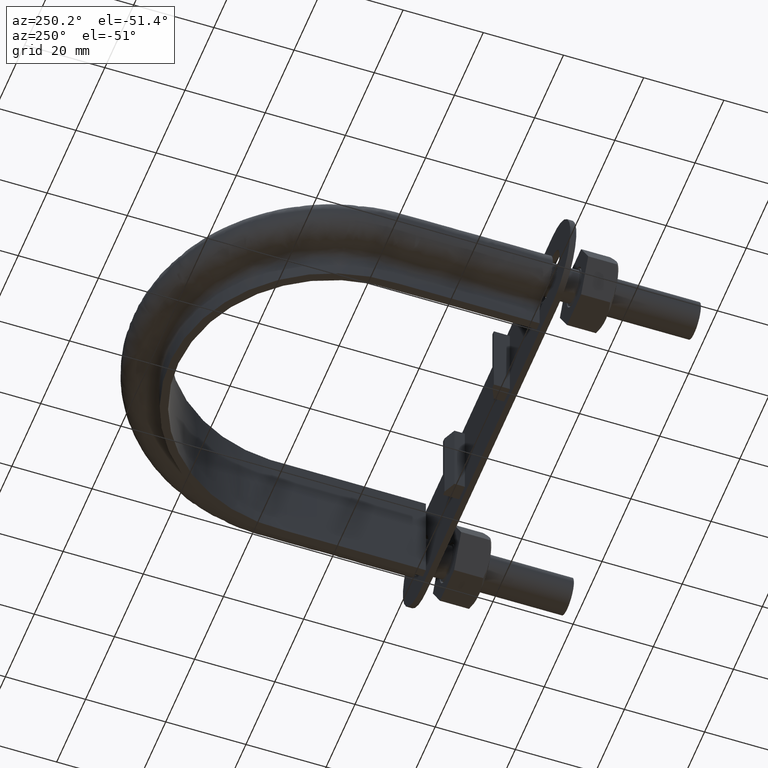
[diagram: clean part render]
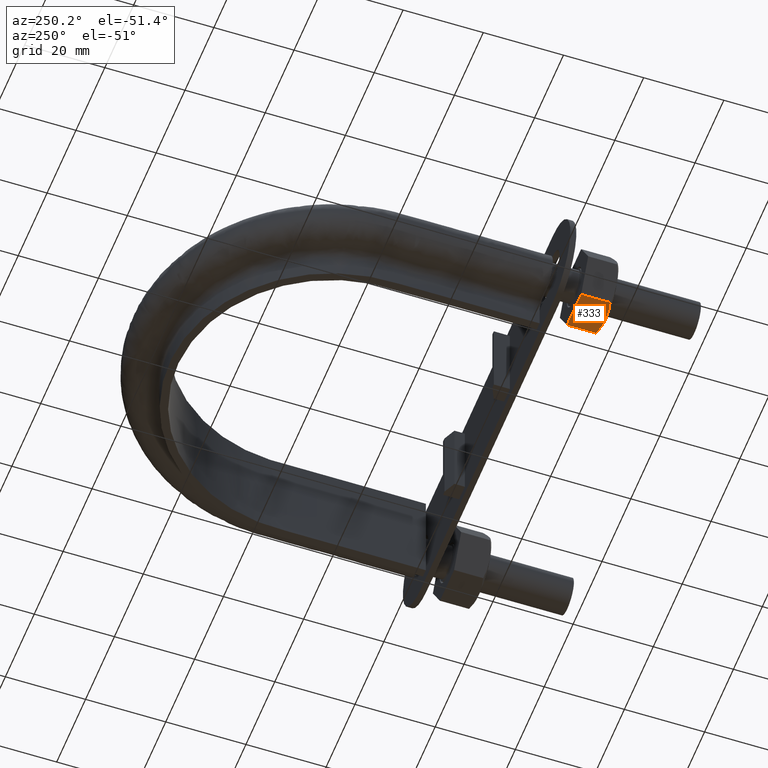
[diagram: same view with one face highlighted and labeled with its STEP entity id]
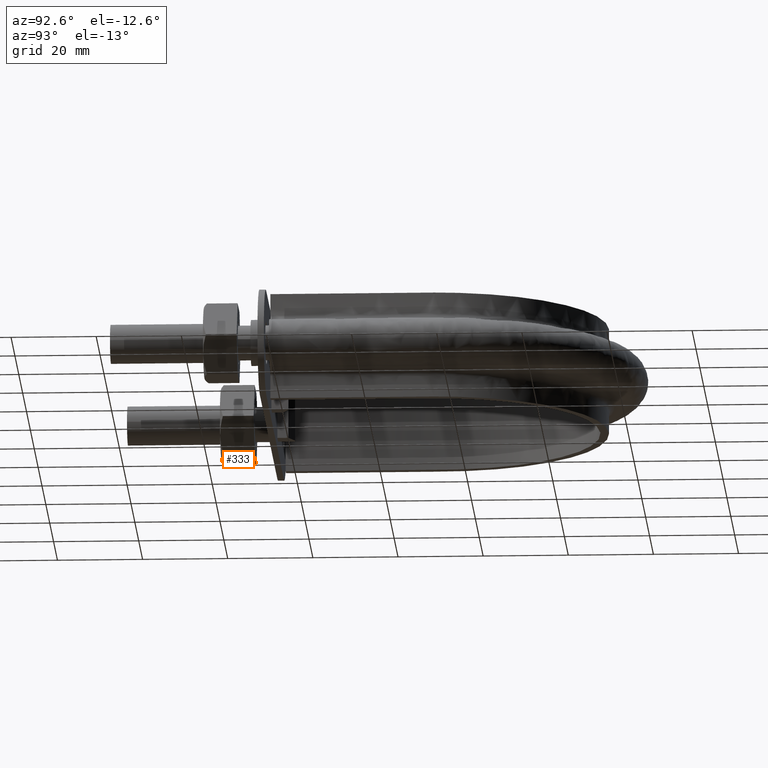
[diagram: same view with one face highlighted and labeled with its STEP entity id]
A machine part, auxiliary view. The second image highlights one B-rep face of the part: STEP entity #333.
A second angle (auxiliary view) of the same face is appended — the face is thin or edge-on in the first view.
In plain terms, the highlighted planar face has unit normal (-0, -0, 1).
Its self-contained STEP definition (entity closure, byte-faithful):
#333 = ADVANCED_FACE( '', ( #532 ), #533, .F. );
#532 = FACE_OUTER_BOUND( '', #1610, .T. );
#533 = PLANE( '', #1611 );
#1610 = EDGE_LOOP( '', ( #2178, #2179, #2180, #2181, #2182 ) );
#1611 = AXIS2_PLACEMENT_3D( '', #2183, #2184, #2185 );
#2178 = ORIENTED_EDGE( '', *, *, #2651, .F. );
#2179 = ORIENTED_EDGE( '', *, *, #2652, .F. );
#2180 = ORIENTED_EDGE( '', *, *, #2653, .F. );
#2181 = ORIENTED_EDGE( '', *, *, #2654, .F. );
#2182 = ORIENTED_EDGE( '', *, *, #2655, .F. );
#2183 = CARTESIAN_POINT( '', ( -39.0925227118927, 30.0000000000000, -8.49999999999843 ) );
#2184 = DIRECTION( '', ( -1.51593857816338E-029, -6.12303176298838E-017, 1.00000000000000 ) );
#2185 = DIRECTION( '', ( 1.00000000000000, -2.47579734491450E-013, 2.80259692864963E-045 ) );
#2651 = EDGE_CURVE( '', #2975, #2976, #2977, .T. );
#2652 = EDGE_CURVE( '', #2978, #2975, #2979, .T. );
#2653 = EDGE_CURVE( '', #2980, #2978, #2981, .T. );
#2654 = EDGE_CURVE( '', #2982, #2980, #2983, .T. );
#2655 = EDGE_CURVE( '', #2976, #2982, #2984, .F. );
#2975 = VERTEX_POINT( '', #3702 );
#2976 = VERTEX_POINT( '', #3703 );
#2977 = B_SPLINE_CURVE_WITH_KNOTS( '', 3, ( #3704, #3705, #3706, #3707, #3708, #3709 ), .UNSPECIFIED., .F., .F., ( 4, 2, 4 ), ( 9.33771209202160E-016, 0.00246745482903548, 0.00493490965807003 ), .UNSPECIFIED. );
#2978 = VERTEX_POINT( '', #3710 );
#2979 = B_SPLINE_CURVE_WITH_KNOTS( '', 3, ( #3711, #3712, #3713, #3714, #3715, #3716 ), .UNSPECIFIED., .F., .F., ( 4, 2, 4 ), ( 3.31356886906154E-015, 0.00246745482903699, 0.00493490965807067 ), .UNSPECIFIED. );
#2980 = VERTEX_POINT( '', #3717 );
#2981 = LINE( '', #3718, #3719 );
#2982 = VERTEX_POINT( '', #3720 );
#2983 = LINE( '', #3721, #3722 );
#2984 = LINE( '', #3723, #3724 );
#3702 = CARTESIAN_POINT( '', ( -44.0000000000011, 22.0000000000013, -8.49999999999782 ) );
#3703 = CARTESIAN_POINT( '', ( -39.1225006407012, 22.7505553499475, -8.49999999999843 ) );
#3704 = CARTESIAN_POINT( '', ( -44.0000000000021, 22.0000000000020, -8.49999999999843 ) );
#3705 = CARTESIAN_POINT( '', ( -43.1678340498119, 22.0000000000019, -8.49999999999843 ) );
#3706 = CARTESIAN_POINT( '', ( -42.3466937523165, 22.0716504305308, -8.49999999999844 ) );
#3707 = CARTESIAN_POINT( '', ( -40.7225568243403, 22.3328582843721, -8.49999999999843 ) );
#3708 = CARTESIAN_POINT( '', ( -39.9194282933267, 22.5215585493668, -8.49999999999843 ) );
#3709 = CARTESIAN_POINT( '', ( -39.1225006407015, 22.7505553499474, -8.49999999999843 ) );
#3710 = CARTESIAN_POINT( '', ( -48.8774993592992, 22.7505553499476, -8.49999999999843 ) );
#3711 = CARTESIAN_POINT( '', ( -48.8774993593024, 22.7505553499485, -8.49999999999843 ) );
#3712 = CARTESIAN_POINT( '', ( -48.0805717066775, 22.5215585493678, -8.49999999999843 ) );
#3713 = CARTESIAN_POINT( '', ( -47.2774431756607, 22.3328582843723, -8.49999999999844 ) );
#3714 = CARTESIAN_POINT( '', ( -45.6533062476850, 22.0716504305310, -8.49999999999843 ) );
#3715 = CARTESIAN_POINT( '', ( -44.8321659501920, 22.0000000000021, -8.49999999999843 ) );
#3716 = CARTESIAN_POINT( '', ( -44.0000000000021, 22.0000000000020, -8.49999999999843 ) );
#3717 = CARTESIAN_POINT( '', ( -48.8774993592992, 30.0000000000000, -8.49999999999843 ) );
#3718 = CARTESIAN_POINT( '', ( -48.8774993592992, 30.0000000000000, -8.49999999999843 ) );
#3719 = VECTOR( '', #4190, 1000.00000000000 );
#3720 = CARTESIAN_POINT( '', ( -39.1225006407008, 30.0000000000000, -8.49999999999843 ) );
#3721 = CARTESIAN_POINT( '', ( -53.7999999999952, 30.0000000000000, -8.49999999999843 ) );
#3722 = VECTOR( '', #4191, 1000.00000000000 );
#3723 = CARTESIAN_POINT( '', ( -39.1225006407008, 30.0000000000000, -8.49999999999843 ) );
#3724 = VECTOR( '', #4192, 1000.00000000000 );
#4190 = DIRECTION( '', ( -2.44921270764476E-016, -1.00000000000000, -6.12303176911189E-017 ) );
#4191 = DIRECTION( '', ( -1.00000000000000, 2.44921270764475E-016, -1.51443891744306E-029 ) );
#4192 = DIRECTION( '', ( -2.44921270764476E-016, -1.00000000000000, -6.12303176911189E-017 ) );